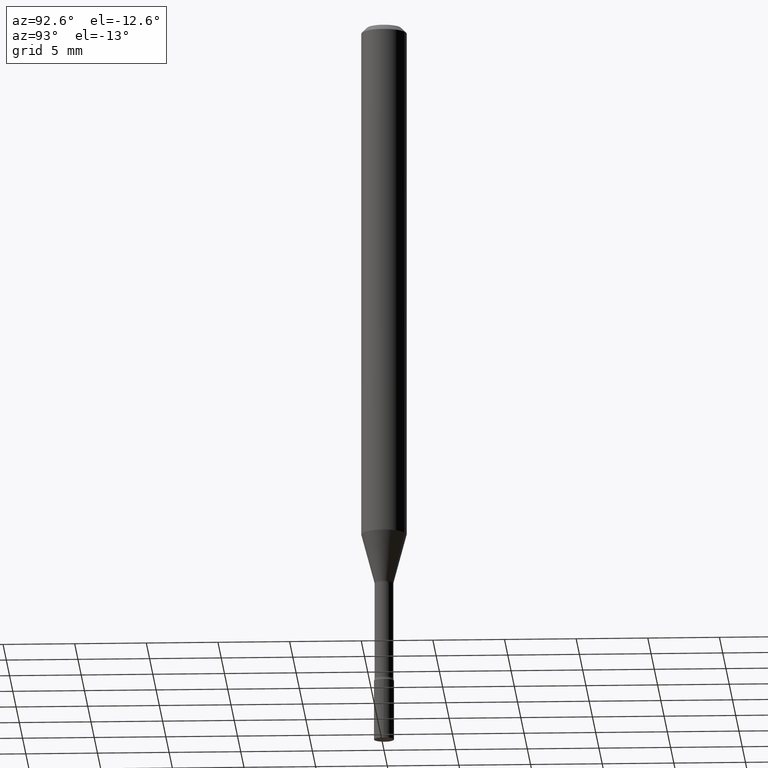
[diagram: clean part render]
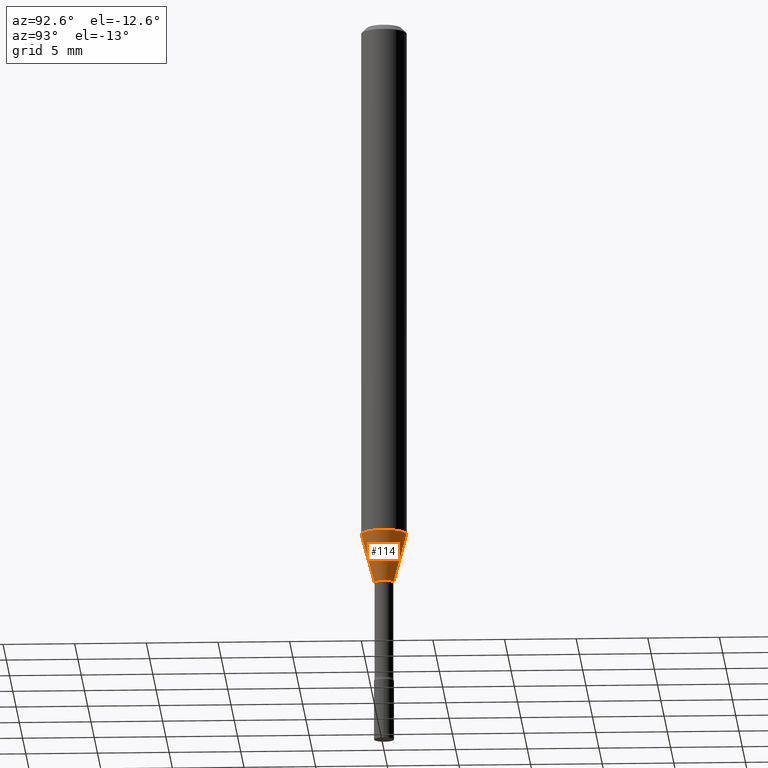
[diagram: same view with one face highlighted and labeled with its STEP entity id]
A machine part, auxiliary view. The second image highlights one B-rep face of the part: STEP entity #114.
In plain terms, the highlighted conical surface has half-angle 15 deg.
Its self-contained STEP definition (entity closure, byte-faithful):
#4 = LINE ( 'NONE', #168, #382 ) ;
#24 = EDGE_CURVE ( 'NONE', #72, #487, #299, .T. ) ;
#25 = ORIENTED_EDGE ( 'NONE', *, *, #24, .T. ) ;
#61 = VECTOR ( 'NONE', #85, 39.37007874015748143 ) ;
#63 = EDGE_CURVE ( 'NONE', #487, #123, #218, .T. ) ;
#69 = EDGE_LOOP ( 'NONE', ( #25, #75, #169, #179 ) ) ;
#72 = VERTEX_POINT ( 'NONE', #77 ) ;
#75 = ORIENTED_EDGE ( 'NONE', *, *, #63, .T. ) ;
#77 = CARTESIAN_POINT ( 'NONE',  ( -1.840786654675983805E-16, -0.02636111260566941297, -1.558092501787273099 ) ) ;
#83 = DIRECTION ( 'NONE',  ( -1.807323732225326589E-15, -0.2588190451025176864, 0.9659258262890690894 ) ) ;
#85 = DIRECTION ( 'NONE',  ( 1.839019923739596765E-15, 0.2588190451025244587, 0.9659258262890673130 ) ) ;
#97 = CARTESIAN_POINT ( 'NONE',  ( 3.480559163964085406E-29, -4.968977948361667747E-15, -1.423220337902600718 ) ) ;
#101 = CARTESIAN_POINT ( 'NONE',  ( 4.440892098500972274E-16, 0.06249999999999501094, -1.423220337902601162 ) ) ;
#114 = ADVANCED_FACE ( 'NONE', ( #451 ), #484, .T. ) ;
#123 = VERTEX_POINT ( 'NONE', #101 ) ;
#138 = CARTESIAN_POINT ( 'NONE',  ( 3.810396037054489114E-29, -5.439865547662276768E-15, -1.558092501787273099 ) ) ;
#143 = DIRECTION ( 'NONE',  ( -2.445551873642688007E-29, 3.491362381516025751E-15, 1.000000000000000000 ) ) ;
#166 = CARTESIAN_POINT ( 'NONE',  ( 1.873069706851234863E-16, 0.02636111260565853626, -1.558092501787273099 ) ) ;
#168 = CARTESIAN_POINT ( 'NONE',  ( -1.840786654675983805E-16, -0.02636111260566941297, -1.558092501787273099 ) ) ;
#169 = ORIENTED_EDGE ( 'NONE', *, *, #476, .F. ) ;
#179 = ORIENTED_EDGE ( 'NONE', *, *, #264, .F. ) ;
#218 = LINE ( 'NONE', #166, #61 ) ;
#222 = DIRECTION ( 'NONE',  ( -6.982962677686265922E-15, -1.000000000000000000, 0.000000000000000000 ) ) ;
#263 = DIRECTION ( 'NONE',  ( -2.445551873642688007E-29, 3.491362381516025751E-15, 1.000000000000000000 ) ) ;
#264 = EDGE_CURVE ( 'NONE', #72, #479, #4, .T. ) ;
#265 = CARTESIAN_POINT ( 'NONE',  ( -4.364351673553569595E-16, -0.06250000000000498213, -1.423220337902600496 ) ) ;
#277 = AXIS2_PLACEMENT_3D ( 'NONE', #138, #306, #465 ) ;
#299 = CIRCLE ( 'NONE', #277, 0.02636111260566397288 ) ;
#306 = DIRECTION ( 'NONE',  ( -2.445551873642688007E-29, 3.491362381516025751E-15, 1.000000000000000000 ) ) ;
#377 = CARTESIAN_POINT ( 'NONE',  ( 3.810396037054489114E-29, -5.439865547662276768E-15, -1.558092501787273099 ) ) ;
#382 = VECTOR ( 'NONE', #83, 39.37007874015748854 ) ;
#383 = DIRECTION ( 'NONE',  ( -6.982962677686265922E-15, -1.000000000000000000, 4.370956789862821150E-15 ) ) ;
#388 = CARTESIAN_POINT ( 'NONE',  ( 3.156980902676104924E-16, 0.02636111260565853626, -1.558092501787273099 ) ) ;
#444 = CIRCLE ( 'NONE', #502, 0.06250000000000000000 ) ;
#451 = FACE_OUTER_BOUND ( 'NONE', #69, .T. ) ;
#465 = DIRECTION ( 'NONE',  ( -6.982962677686265922E-15, -1.000000000000000000, 0.000000000000000000 ) ) ;
#474 = AXIS2_PLACEMENT_3D ( 'NONE', #377, #263, #222 ) ;
#476 = EDGE_CURVE ( 'NONE', #479, #123, #444, .T. ) ;
#479 = VERTEX_POINT ( 'NONE', #265 ) ;
#484 = CONICAL_SURFACE ( 'NONE', #474, 0.02636111260566397288, 0.2617993877991497409 ) ;
#487 = VERTEX_POINT ( 'NONE', #388 ) ;
#502 = AXIS2_PLACEMENT_3D ( 'NONE', #97, #143, #383 ) ;